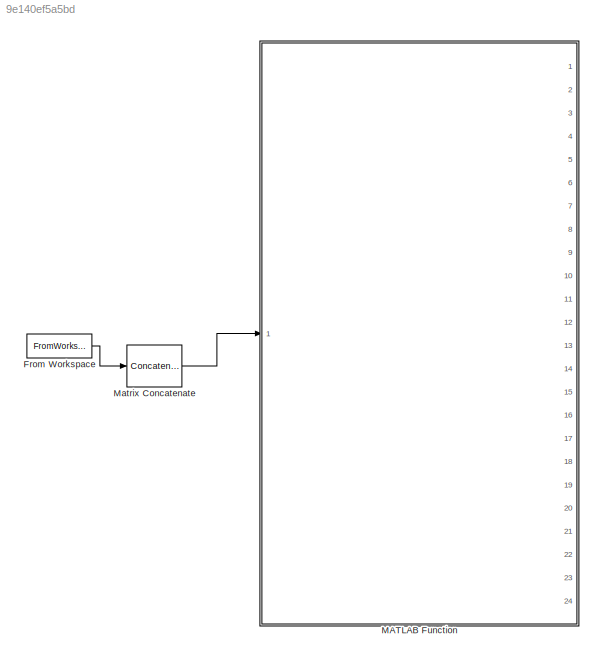
MODEL slx_9e140ef5a5bd
KIND model
CONFIG AbsTol = auto
CONFIG EnableMultiTasking = off
CONFIG FixedStep = auto
CONFIG MaxStep = auto
CONFIG MinStep = auto
CONFIG RelTol = 1e-3
CONFIG SampleTimeConstraint = Unconstrained
CONFIG Solver = VariableStepAuto
CONFIG SolverName = VariableStepAuto
CONFIG StartTime = 0.0
CONFIG StopTime = 0
WORKSPACE source: external: MAT-File  (data not in archive)
BLOCK [FromWorkspace] From Workspace
  Interpolate = off
  OutDataTypeStr = double
  OutputAfterFinalValue = Setting to zero
  SampleTime = A
  VariableName = g
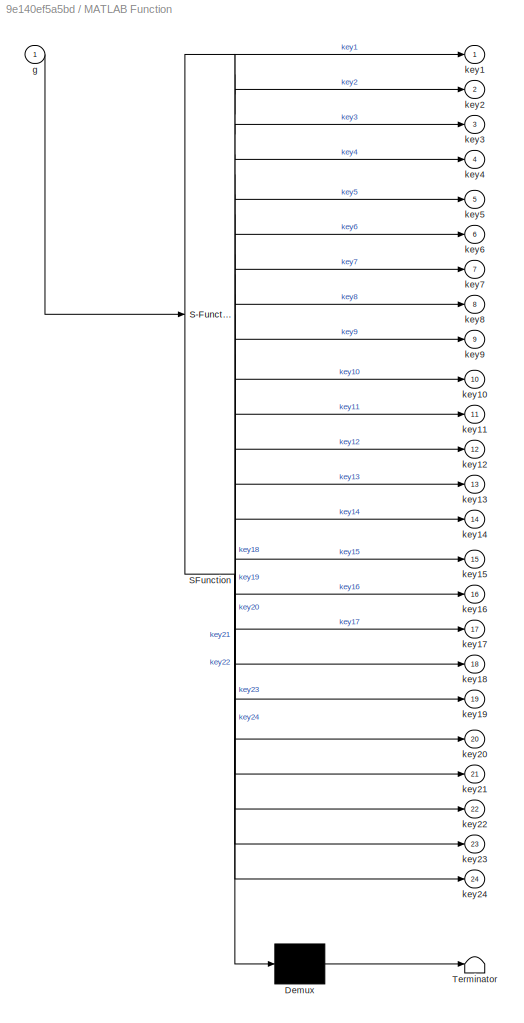
BLOCK [SubSystem] MATLAB Function
  ErrorFcn = Stateflow.Translate.translate
  PermitHierarchicalResolution = ExplicitOnly
  Ports = [1, 24]
  RequestExecContextInheritance = off
  SFBlockType = MATLAB Function
  TreatAsAtomicUnit = on
BLOCK [Demux] MATLAB Function/ Demux 
  Outputs = 1
  Ports = [1, 1]
BLOCK [S-Function] MATLAB Function/ SFunction 
  EnableBusSupport = on
  FunctionName = sf_sfun
  PortCounts = [1 25]
  Ports = [1, 25]
  SFcnIsStateOwnerBlock = off
  SFunctionDeploymentMode = off
  Tag = Stateflow S-Function 2
BLOCK [Terminator] MATLAB Function/ Terminator 
BLOCK [Inport] MATLAB Function/g
  IconDisplay = Port number
BLOCK [Outport] MATLAB Function/key1
  IconDisplay = Port number
BLOCK [Outport] MATLAB Function/key10
  IconDisplay = Port number
  Port = 10
BLOCK [Outport] MATLAB Function/key11
  IconDisplay = Port number
  Port = 11
BLOCK [Outport] MATLAB Function/key12
  IconDisplay = Port number
  Port = 12
BLOCK [Outport] MATLAB Function/key13
  IconDisplay = Port number
  Port = 13
BLOCK [Outport] MATLAB Function/key14
  IconDisplay = Port number
  Port = 14
BLOCK [Outport] MATLAB Function/key15
  IconDisplay = Port number
  Port = 15
BLOCK [Outport] MATLAB Function/key16
  IconDisplay = Port number
  Port = 16
BLOCK [Outport] MATLAB Function/key17
  IconDisplay = Port number
  Port = 17
BLOCK [Outport] MATLAB Function/key18
  IconDisplay = Port number
  Port = 18
BLOCK [Outport] MATLAB Function/key19
  IconDisplay = Port number
  Port = 19
BLOCK [Outport] MATLAB Function/key2
  IconDisplay = Port number
  Port = 2
BLOCK [Outport] MATLAB Function/key20
  IconDisplay = Port number
  Port = 20
BLOCK [Outport] MATLAB Function/key21
  IconDisplay = Port number
  Port = 21
BLOCK [Outport] MATLAB Function/key22
  IconDisplay = Port number
  Port = 22
BLOCK [Outport] MATLAB Function/key23
  IconDisplay = Port number
  Port = 23
BLOCK [Outport] MATLAB Function/key24
  IconDisplay = Port number
  Port = 24
BLOCK [Outport] MATLAB Function/key3
  IconDisplay = Port number
  Port = 3
BLOCK [Outport] MATLAB Function/key4
  IconDisplay = Port number
  Port = 4
BLOCK [Outport] MATLAB Function/key5
  IconDisplay = Port number
  Port = 5
BLOCK [Outport] MATLAB Function/key6
  IconDisplay = Port number
  Port = 6
BLOCK [Outport] MATLAB Function/key7
  IconDisplay = Port number
  Port = 7
BLOCK [Outport] MATLAB Function/key8
  IconDisplay = Port number
  Port = 8
BLOCK [Outport] MATLAB Function/key9
  IconDisplay = Port number
  Port = 9
BLOCK [Concatenate] Matrix Concatenate
  ConcatenateDimension = 2
  Mode = Multidimensional array
  NumInputs = 1
  Ports = [1, 1]
LINE From Workspace:1 -> Matrix Concatenate:1
LINE Matrix Concatenate:1 -> MATLAB Function:1
CHART MATLAB Function states=1 transitions=1
  STATE_LABEL 'eML_blk_kernel()'
  STATE_LABEL 'SCRIPT:\nfunction [key1,  key2,  key3,  key4,  key5,  key6,  key7,  key8,  key9,  key10,...\n    key11, key12, key13, key14, key15, key16, key17, key18, key19, key20,...\n    key21, key22, key23, key24]                              = STR2OUTPUT(g)\n\n\ni = 1;\n\n[r, c] = size(g);\nwhile i < c + 1 %%ITERATE THROUGH EACH COLUMN\n    j = 1;\n    while j < r+1 %%TURN ON SPECIFIC PINS IN COLUMN\n        if g(j,i) ...<+3608ch>'
